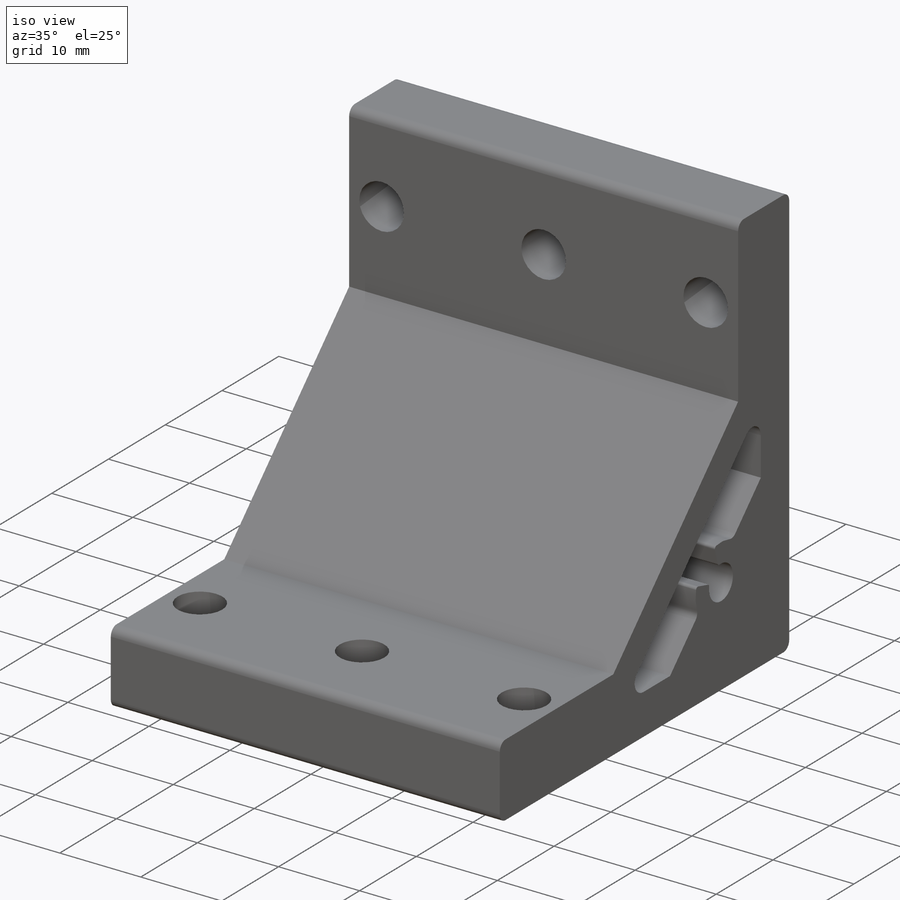
[diagram: iso view]
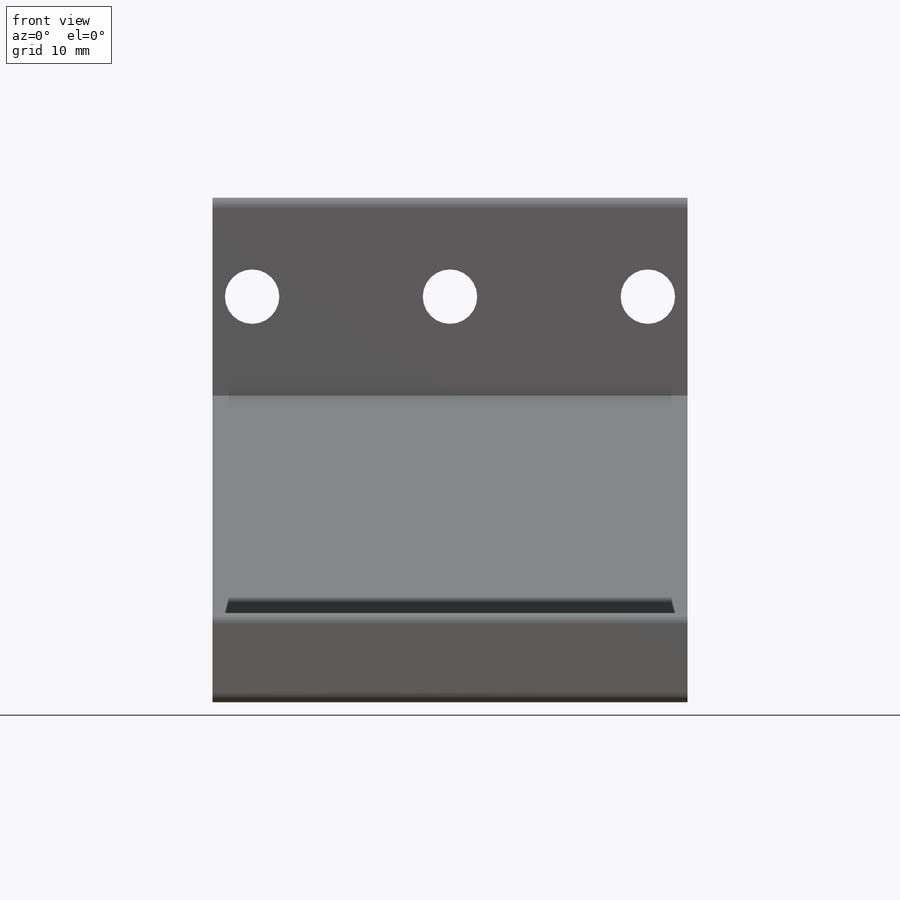
[diagram: front view]
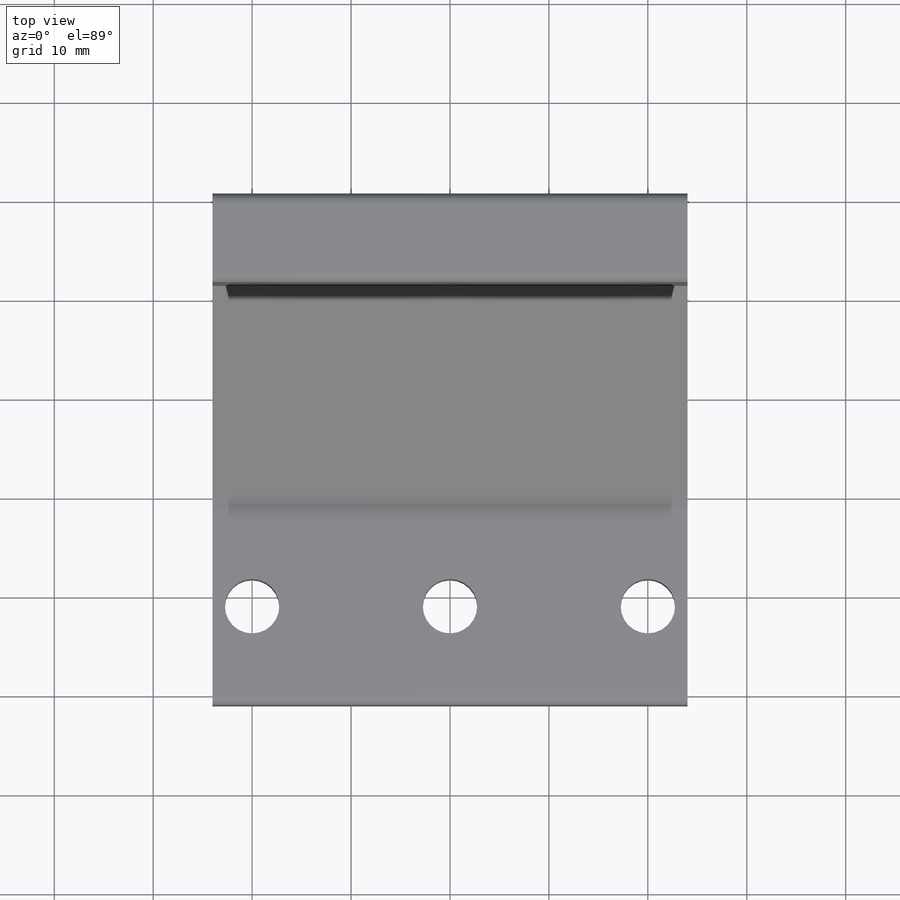
[diagram: top view]
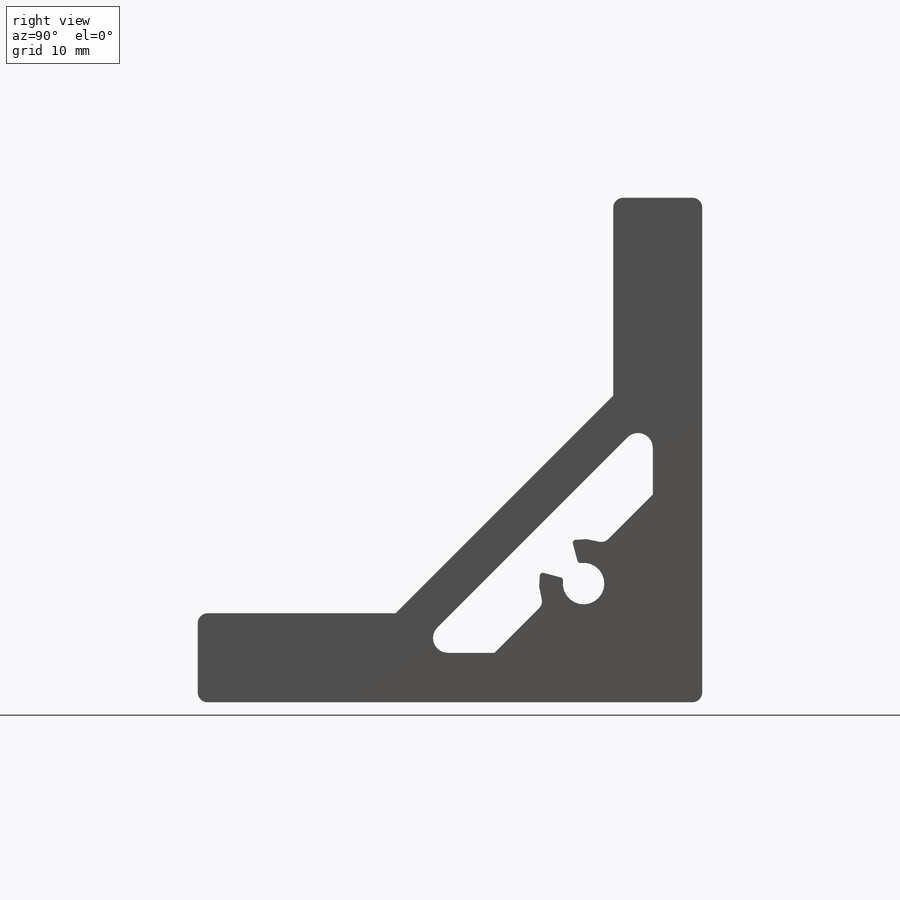
[diagram: right view]
SOLIDWORKS PART (.sldprt)
format: sldprt  version: not decoded by parser v0  size: 280,576 bytes
history: native  units: mm
features: sketch x7, cut_extrude x6, plane x5, material x1, extrude x1 (+11 scaffold rows collapsed)
feature tree (31):
  scaffold x11  (default folders/planes/origin — collapsed)
  material  "Material <not specified>"
  plane  "Plane1"
  sketch  "Sketch1"  dims[c1.D7=2.1mm c1.D13=4.5mm c1.D14=1.0mm c1.D1=9.0mm c1.D2=9.0mm c1.D3=51.0mm c1.D4=51.0mm c1.D5=5.0mm c1.D6=5.0mm c1.D8=~39.192771mm c2.D8=45.0deg c2.D9=19.0mm c2.D10=19.0mm c3.D9=20.0mm c3.D10=20.0mm c3.D8=12.0mm c3.D11=4.0mm c3.D12=5.9mm]
  extrude  "Boss-Extrude1"  Depth=24mm
  plane  "Plane2"
  sketch  "Sketch2"  dims[D1=5.5mm D2=10.0mm D3=20.0mm]
  cut_extrude  "Cut-Extrude1"  Depth=9mm
  plane  "Plane3"
  sketch  "Sketch3"  dims[D1=5.5mm D2=10.0mm D3=20.0mm]
  cut_extrude  "Cut-Extrude2"  Depth=9mm
  plane  "Plane4"
  sketch  "Sketch4"  dims[D2=5.5mm D1=10.0mm D3=20.0mm]
  cut_extrude  "Cut-Extrude3"  Depth=9mm
  plane  "Plane5"
  sketch  "Sketch5"  dims[D1=5.5mm D2=10.0mm D3=20.0mm]
  cut_extrude  "Cut-Extrude4"  Depth=9mm
  sketch  "Sketch6"  dims[D1=5.5mm D2=10.0mm]
  cut_extrude  "Cut-Extrude5"  Depth=10mm
  sketch  "Sketch7"  dims[D1=5.5mm D2=10.0mm]
  cut_extrude  "Cut-Extrude6"  Depth=10mm
decode coverage: 14 of 14 modeling features carry decoded parameters
note: ~ marks probable driven/reference dimensions
note: suppression state not decoded; provenance and decode notes live in map.json
